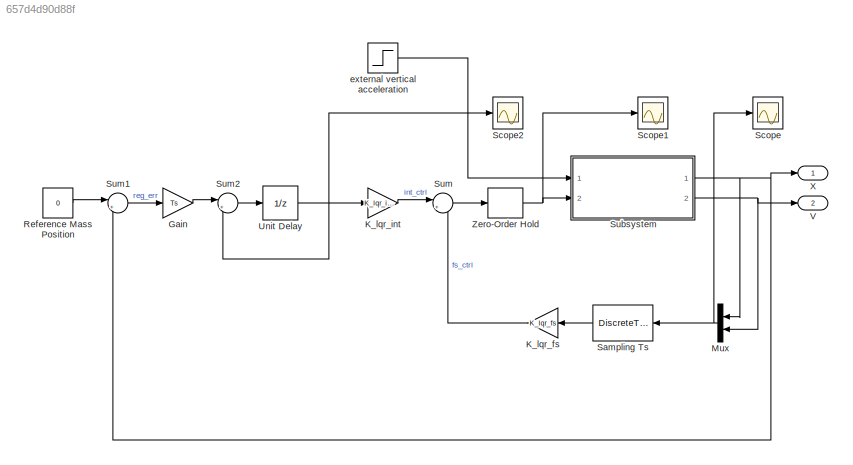
MODEL slx_657d4d90d88f
KIND model
CONFIG AbsTol = auto
CONFIG EnableMultiTasking = off
CONFIG FixedStep = STEP_SIZE
CONFIG MaxStep = auto
CONFIG MinStep = auto
CONFIG RelTol = 1e-3
CONFIG SampleTimeConstraint = Unconstrained
CONFIG Solver = ode4
CONFIG SolverName = ode4
CONFIG StartTime = 0.0
CONFIG StopTime = SIM_TIME
BLOCK [Gain] Gain
  Gain = Ts
  OutDataTypeStr = Inherit: Inherit via internal rule
  ParamDataTypeStr = Inherit: Inherit via internal rule
  SaturateOnIntegerOverflow = off
BLOCK [Gain] K_lqr_fs
  Gain = K_lqr_fs
  Multiplication = Matrix(K*u)
  OutDataTypeStr = Inherit: Inherit via internal rule
  ParamDataTypeStr = Inherit: Inherit via internal rule
  SaturateOnIntegerOverflow = off
BLOCK [Gain] K_lqr_int
  Gain = K_lqr_int
  Multiplication = Matrix(K*u) (u vector)
  OutDataTypeStr = Inherit: Inherit via internal rule
  ParamDataTypeStr = Inherit: Inherit via internal rule
  SaturateOnIntegerOverflow = off
BLOCK [Mux] Mux
  DisplayOption = bar
  Inputs = 2
  Ports = [2, 1]
BLOCK [Constant] Reference Mass Position
  Value = 0
BLOCK [DiscreteTransferFcn] Sampling Ts
  Denominator = [1]
  InputPortMap = u0
  Ports = [1, 1]
  SampleTime = Ts
BLOCK [Scope] Scope
  Floating = off
  NumInputPorts = 1
  Ports = [1]
  ScopeSpecificationString = Simulink.scopes.TimeScopeBlockCfg('CurrentConfiguration', extmgr.ConfigurationSet(extmgr.Configuration('Core','General UI',true),extmgr.Configuration('Core','Source UI',true),extmgr.Configuration('Sources','WiredSimulink',true),extmgr.Configuration('Visuals','Time Domain',true,'SerializedDisplays',{struct('MinYLimReal','-0.20498','MaxYLimReal','0.13368','YLabelReal','','MinYLimMag','0.00000','MaxY...<+1420ch>
BLOCK [Scope] Scope1
  Floating = off
  NumInputPorts = 1
  Ports = [1]
  ScopeSpecificationString = Simulink.scopes.TimeScopeBlockCfg('CurrentConfiguration', extmgr.ConfigurationSet(extmgr.Configuration('Core','General UI',true),extmgr.Configuration('Core','Source UI',true),extmgr.Configuration('Sources','WiredSimulink',true,'DataLoggingVariableName','ScopeData1'),extmgr.Configuration('Visuals','Time Domain',true,'SerializedDisplays',{struct('MinYLimReal','-0.5209','MaxYLimReal','0.27557','YLabe...<+1717ch>
BLOCK [Scope] Scope2
  Floating = off
  NumInputPorts = 1
  Ports = [1]
  ScopeSpecificationString = Simulink.scopes.TimeScopeBlockCfg('CurrentConfiguration', extmgr.ConfigurationSet(extmgr.Configuration('Core','General UI',true),extmgr.Configuration('Core','Source UI',true),extmgr.Configuration('Sources','WiredSimulink',true,'DataLoggingVariableName','ScopeData2'),extmgr.Configuration('Visuals','Time Domain',true,'SerializedDisplays',{struct('MinYLimReal','-0.00763','MaxYLimReal','0.00109','YLab...<+1722ch>
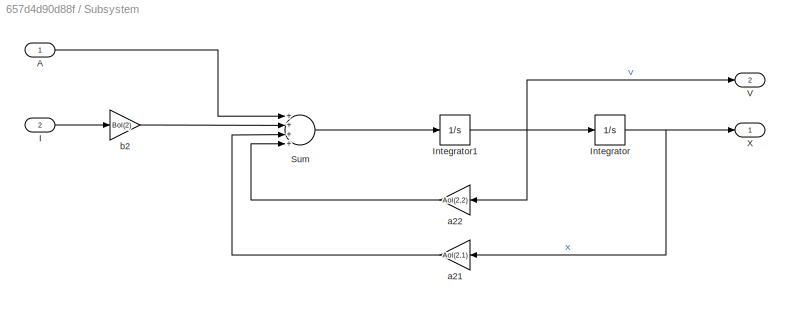
BLOCK [SubSystem] Subsystem
  Ports = [2, 2]
  RequestExecContextInheritance = off
BLOCK [Inport] Subsystem/A
  IconDisplay = Port number
BLOCK [Inport] Subsystem/I
  IconDisplay = Port number
  Port = 2
BLOCK [Integrator] Subsystem/Integrator
  InitialCondition = x0(1)
  Ports = [1, 1]
  Priority = 1
BLOCK [Integrator] Subsystem/Integrator1
  InitialCondition = x0(2)
  Ports = [1, 1]
  Priority = 2
BLOCK [Sum] Subsystem/Sum
  InputSameDT = off
  Inputs = ++++
  OutDataTypeStr = Inherit: Inherit via internal rule
  Ports = [4, 1]
  SaturateOnIntegerOverflow = off
BLOCK [Outport] Subsystem/V
  IconDisplay = Port number
  Port = 2
BLOCK [Outport] Subsystem/X
  IconDisplay = Port number
BLOCK [Gain] Subsystem/a21
  Gain = Aol(2,1)
  OutDataTypeStr = Inherit: Inherit via internal rule
  ParamDataTypeStr = Inherit: Inherit via internal rule
  SaturateOnIntegerOverflow = off
BLOCK [Gain] Subsystem/a22
  Gain = Aol(2,2)
  OutDataTypeStr = Inherit: Inherit via internal rule
  ParamDataTypeStr = Inherit: Inherit via internal rule
  SaturateOnIntegerOverflow = off
BLOCK [Gain] Subsystem/b2
  Gain = Bol(2)
  OutDataTypeStr = Inherit: Inherit via internal rule
  ParamDataTypeStr = Inherit: Inherit via internal rule
  SaturateOnIntegerOverflow = off
BLOCK [Sum] Sum
  IconShape = round
  InputSameDT = off
  Inputs = |+-
  OutDataTypeStr = Inherit: Inherit via internal rule
  Ports = [2, 1]
  SaturateOnIntegerOverflow = off
BLOCK [Sum] Sum1
  IconShape = round
  InputSameDT = off
  Inputs = |+-
  OutDataTypeStr = Inherit: Inherit via internal rule
  Ports = [2, 1]
  SaturateOnIntegerOverflow = off
BLOCK [Sum] Sum2
  IconShape = round
  InputSameDT = off
  Inputs = |++
  OutDataTypeStr = Inherit: Inherit via internal rule
  Ports = [2, 1]
  SaturateOnIntegerOverflow = off
BLOCK [UnitDelay] Unit Delay
  InitialCondition = x0_int
  InputProcessing = Elements as channels (sample based)
  SampleTime = Ts
BLOCK [Outport] V
  IconDisplay = Port number
  Port = 2
BLOCK [Outport] X
  IconDisplay = Port number
BLOCK [ZeroOrderHold] Zero-Order Hold
  SampleTime = Ts
BLOCK [Step] external vertical acceleration
  After = A1
  Before = A0
  SampleTime = 0
  Time = STEP_TIME
LINE Gain:1 -> Sum2:1
LINE K_lqr_fs:1 -> Sum:2
LINE K_lqr_int:1 -> Sum:1
NET Mux:1 -> Sampling Ts:1, Scope:1
LINE Reference Mass Position:1 -> Sum1:1
LINE Sampling Ts:1 -> K_lqr_fs:1
LINE Subsystem/A:1 -> Subsystem/Sum:1
LINE Subsystem/I:1 -> Subsystem/b2:1
NET Subsystem/Integrator1:1 -> Subsystem/Integrator:1, Subsystem/V:1, Subsystem/a22:1
NET Subsystem/Integrator:1 -> Subsystem/X:1, Subsystem/a21:1
LINE Subsystem/Sum:1 -> Subsystem/Integrator1:1
LINE Subsystem/a21:1 -> Subsystem/Sum:3
LINE Subsystem/a22:1 -> Subsystem/Sum:4
LINE Subsystem/b2:1 -> Subsystem/Sum:2
NET Subsystem:1 -> Mux:1, Sum1:2, X:1
NET Subsystem:2 -> Mux:2, V:1
LINE Sum1:1 -> Gain:1
LINE Sum2:1 -> Unit Delay:1
LINE Sum:1 -> Zero-Order Hold:1
NET Unit Delay:1 -> K_lqr_int:1, Scope2:1, Sum2:2
NET Zero-Order Hold:1 -> Scope1:1, Subsystem:2
LINE external vertical acceleration:1 -> Subsystem:1
note: NET lines group one-source signal fan-out (src -> all destinations, sorted); 1:1 wires keep LINE
